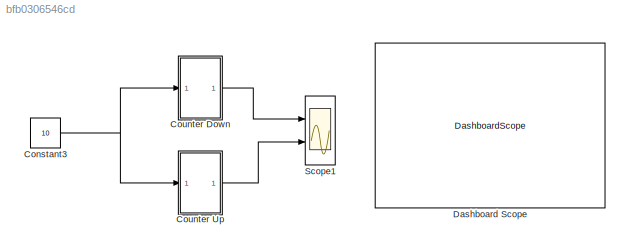
MODEL slx_bfb0306546cd
KIND model
CONFIG AbsTol = auto
CONFIG EnableMultiTasking = off
CONFIG FixedStep = auto
CONFIG MaxStep = auto
CONFIG MinStep = auto
CONFIG RelTol = 1e-3
CONFIG SampleTimeConstraint = Unconstrained
CONFIG SolverName = FixedStepDiscrete
CONFIG StartTime = 0.0
CONFIG StopTime = 10
WORKSPACE source: mxarray member
WORKSPACE MAX = 10
WORKSPACE threshold = 0
BLOCK [Constant] Constant3
  Value = 10
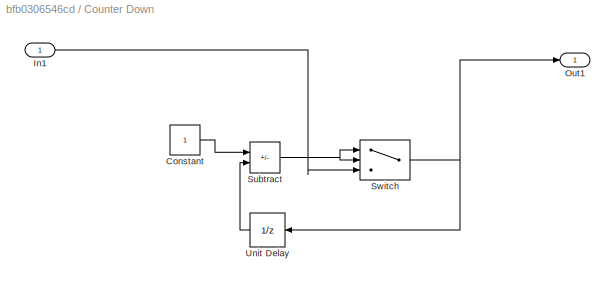
BLOCK [SubSystem] Counter Down
  Ports = [1, 1]
  RequestExecContextInheritance = off
BLOCK [Constant] Counter Down/Constant
BLOCK [Inport] Counter Down/In1
BLOCK [Outport] Counter Down/Out1
BLOCK [Sum] Counter Down/Subtract
  IconShape = rectangular
  Inputs = -+
  Ports = [2, 1]
BLOCK [Switch] Counter Down/Switch
  InputSameDT = off
  SaturateOnIntegerOverflow = off
BLOCK [UnitDelay] Counter Down/Unit Delay
  HasFrameUpgradeWarning = on
  SampleTime = -1
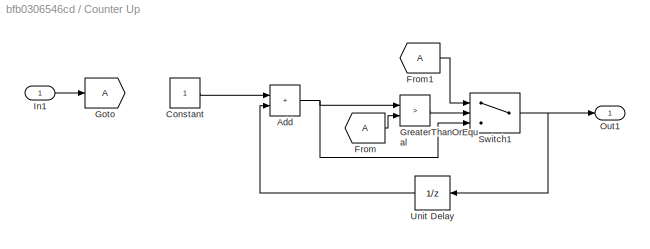
BLOCK [SubSystem] Counter Up
  Ports = [1, 1]
  RequestExecContextInheritance = off
BLOCK [Sum] Counter Up/Add
  IconShape = rectangular
  Ports = [2, 1]
BLOCK [Constant] Counter Up/Constant
BLOCK [From] Counter Up/From
BLOCK [From] Counter Up/From1
BLOCK [Goto] Counter Up/Goto
BLOCK [RelationalOperator] Counter Up/GreaterThanOrEqual
  InputSameDT = off
  Operator = >
  OutDataTypeStr = boolean
  Ports = [2, 1]
  RndMeth = Simplest
BLOCK [Inport] Counter Up/In1
BLOCK [Outport] Counter Up/Out1
BLOCK [Switch] Counter Up/Switch1
  Criteria = u2 ~= 0
  InputSameDT = off
  SaturateOnIntegerOverflow = off
BLOCK [UnitDelay] Counter Up/Unit Delay
  HasFrameUpgradeWarning = on
  InitialCondition = -1
BLOCK [DashboardScope] Dashboard Scope
BLOCK [Scope] Scope1
  Floating = off
  NumInputPorts = 2
  Ports = [2]
  ScopeSpecificationString = Simulink.scopes.TimeScopeBlockCfg('CurrentConfiguration', extmgr.ConfigurationSet(extmgr.Configuration('Core','General UI',true),extmgr.Configuration('Core','Source UI',true),extmgr.Configuration('Sources','WiredSimulink',true,'DataLoggingVariableName','ScopeData1'),extmgr.Configuration('Visuals','Time Domain',true,'SerializedDisplays',{struct('MinYLimReal','-1.25','MaxYLimReal','11.25','YLabelRea...<+1518ch>
NET Constant3:1 -> Counter Down:1, Counter Up:1
LINE Counter Down/Constant:1 -> Counter Down/Subtract:1
LINE Counter Down/In1:1 -> Counter Down/Switch:3
NET Counter Down/Subtract:1 -> Counter Down/Switch:1, Counter Down/Switch:2
NET Counter Down/Switch:1 -> Counter Down/Out1:1, Counter Down/Unit Delay:1
LINE Counter Down/Unit Delay:1 -> Counter Down/Subtract:2
LINE Counter Down:1 -> Scope1:1
NET Counter Up/Add:1 -> Counter Up/GreaterThanOrEqual:1, Counter Up/Switch1:3
LINE Counter Up/Constant:1 -> Counter Up/Add:1
LINE Counter Up/From1:1 -> Counter Up/Switch1:1
LINE Counter Up/From:1 -> Counter Up/GreaterThanOrEqual:2
LINE Counter Up/GreaterThanOrEqual:1 -> Counter Up/Switch1:2
LINE Counter Up/In1:1 -> Counter Up/Goto:1
NET Counter Up/Switch1:1 -> Counter Up/Out1:1, Counter Up/Unit Delay:1
LINE Counter Up/Unit Delay:1 -> Counter Up/Add:2
LINE Counter Up:1 -> Scope1:2
note: NET lines group one-source signal fan-out (src -> all destinations, sorted); 1:1 wires keep LINE
